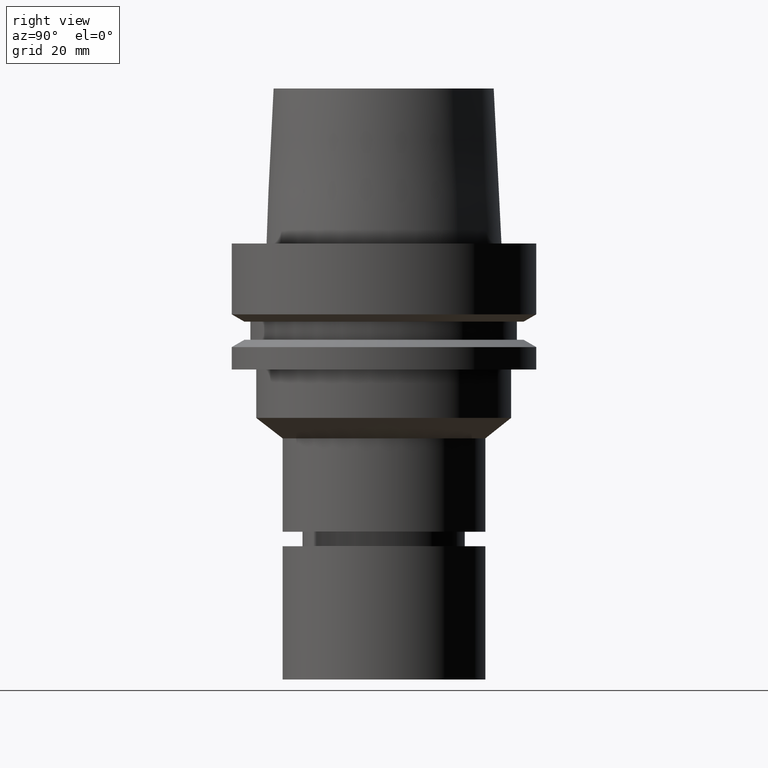
[diagram: clean part render]
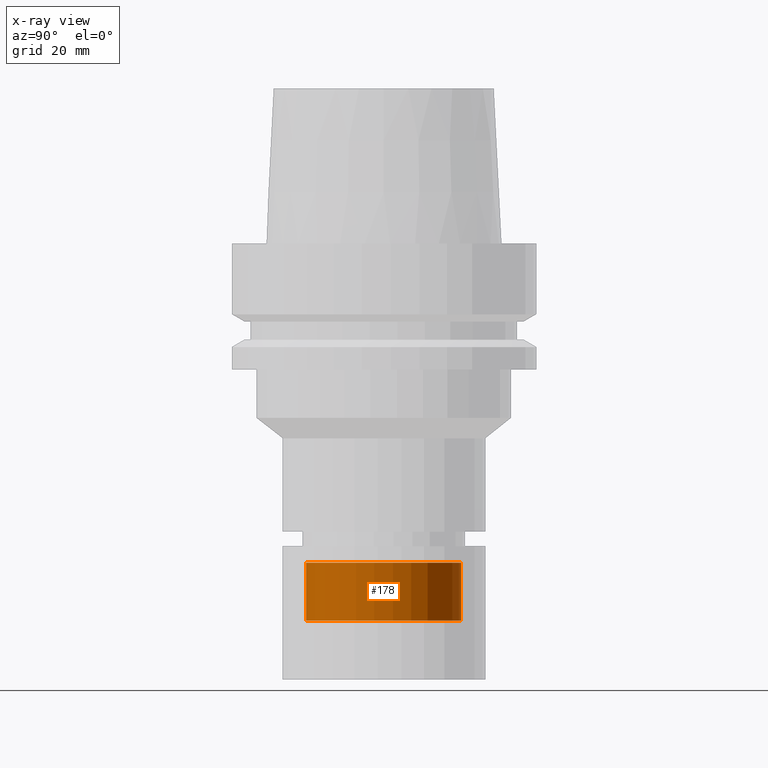
[diagram: x-ray — body ghosted, one internal face saturated and labeled with its STEP entity id]
A machine part, right view, then the same camera in x-ray: the body is ghosted and one INTERNAL B-rep face — a face not visible from any outside direction — is saturated and labeled: STEP entity #178.
In plain terms, the highlighted cylindrical surface (bore or boss wall) has radius 16 mm, axis along (-0, -0, 1).
Its self-contained STEP definition (entity closure, byte-faithful):
#178=ADVANCED_FACE('Unnamed[1]',(#367,#368),#369,.T.);
#189=EDGE_CURVE('Unnamed[1]',#385,#385,#386,.T.);
#191=EDGE_CURVE('Unnamed[1]',#388,#388,#389,.T.);
#367=FACE_BOUND('',#595,.T.);
#368=FACE_BOUND('',#596,.T.);
#369=CYLINDRICAL_SURFACE('',#597,16.0);
#385=VERTEX_POINT('',#618);
#386=CIRCLE('',#619,16.0);
#388=VERTEX_POINT('',#622);
#389=CIRCLE('',#623,16.0);
#595=EDGE_LOOP('',(#798));
#596=EDGE_LOOP('',(#799));
#597=AXIS2_PLACEMENT_3D('',#800,#801,#802);
#618=CARTESIAN_POINT('',(4.76967745233821E-015,16.0,-77.8947441116744));
#619=AXIS2_PLACEMENT_3D('',#818,#819,#820);
#622=CARTESIAN_POINT('',(4.03523187322559E-015,16.0,-65.9003375672901));
#623=AXIS2_PLACEMENT_3D('',#821,#822,#823);
#798=ORIENTED_EDGE('',*,*,#191,.F.);
#799=ORIENTED_EDGE('',*,*,#189,.T.);
#800=CARTESIAN_POINT('',(4.4024546627819E-015,8.8049093255638E-015,-71.8975408394822));
#801=DIRECTION('',(-6.12323399573677E-017,-1.22464679914735E-016,1.0));
#802=DIRECTION('',(-1.23259516440783E-032,1.0,1.22464679914735E-016));
#818=CARTESIAN_POINT('',(4.76967745233821E-015,9.53935490467641E-015,-77.8947441116744));
#819=DIRECTION('',(-6.12323399573677E-017,-1.22464679914735E-016,1.0));
#820=DIRECTION('',(-1.23259516440783E-032,1.0,1.22464679914735E-016));
#821=CARTESIAN_POINT('',(4.03523187322559E-015,8.07046374645118E-015,-65.9003375672901));
#822=DIRECTION('',(-6.12323399573677E-017,-1.22464679914735E-016,1.0));
#823=DIRECTION('',(-1.23259516440783E-032,1.0,1.22464679914735E-016));